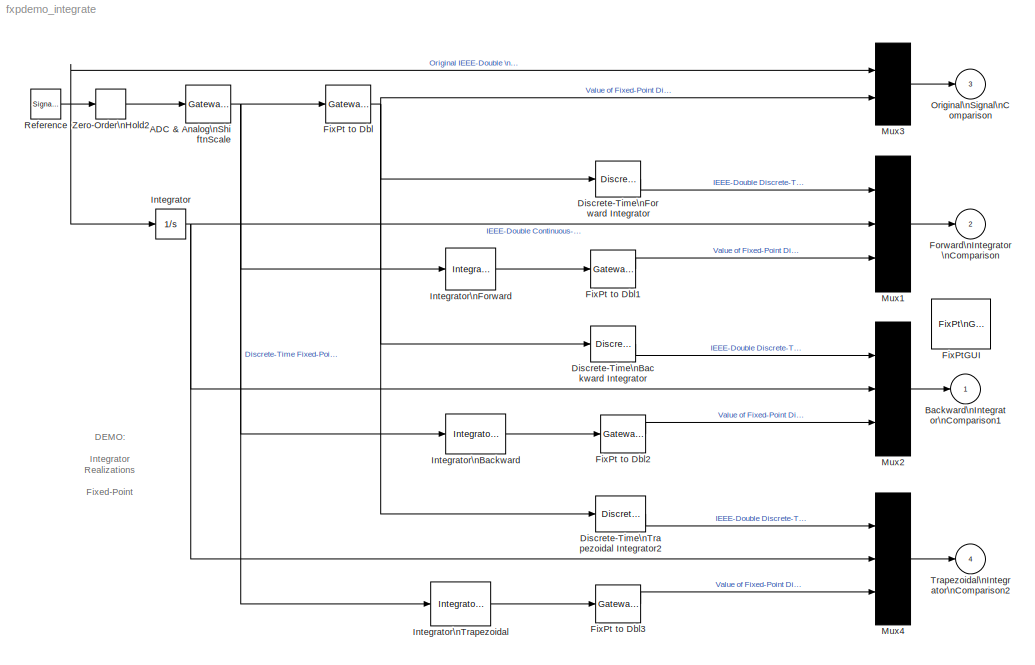
MODEL fxpdemo_integrate
KIND model
CONFIG AbsTol = 1e-6
CONFIG FixedStep = SampleTime/5
CONFIG InitFcn = ; 
CONFIG MaxStep = auto
CONFIG MinStep = auto
CONFIG PreLoadFcn = preload_integrate
CONFIG RelTol = 1e-3
CONFIG Solver = ode5
CONFIG SolverMode = SingleTasking
CONFIG StartFcn = ; 
CONFIG StartTime = 0.0
CONFIG StopFcn = ; 
CONFIG StopTime = 4
BLOCK [Reference] ADC & Analog\nShiftnScale  REF=fixpt_lib_4/Data Type/Gateway In  (lib defined in mdl_ef9dacb0d1df)
  DoSatur = on
  InRealWorld = Real World Value
  LockScale = on
  OutDataType = sfix(16)
  OutScaling = 2^-9
  OutputDataTypeScalingMode = Specify via dialog
  Ports = [1, 1]
  RndMeth = Nearest
  SourceBlock = fixpt_lib_4/Data Type/Gateway In
  SourceType = Fixed-Point Gateway In
BLOCK [Outport] Backward\nIntegrator\nComparison1
BLOCK [DiscreteIntegrator] Discrete-Time\nBackward Integrator
  ExternalReset = none
  InitialConditionSource = internal
  IntegratorMethod = Backward Euler
  Ports = [1, 1]
  SampleTime = SampleTime
BLOCK [DiscreteIntegrator] Discrete-Time\nForward Integrator
  ExternalReset = none
  InitialConditionSource = internal
  IntegratorMethod = Forward Euler
  Ports = [1, 1]
  SampleTime = SampleTime
BLOCK [DiscreteIntegrator] Discrete-Time\nTrapezoidal Integrator2
  ExternalReset = none
  InitialConditionSource = internal
  IntegratorMethod = Trapezoidal
  Ports = [1, 1]
  SampleTime = SampleTime
BLOCK [Reference] FixPt to Dbl  REF=fixpt_lib_4/Data Type/Gateway Out  (lib defined in mdl_ef9dacb0d1df)
  DoSatur = off
  OutBuiltInType = double
  OutRealWorld = Real World Value
  Ports = [1, 1]
  RndMeth = Floor
  SourceBlock = fixpt_lib_4/Data Type/Gateway Out
  SourceType = Fixed-Point Gateway Out
BLOCK [Reference] FixPt to Dbl1  REF=fixpt_lib_4/Data Type/Gateway Out  (lib defined in mdl_ef9dacb0d1df)
  DoSatur = off
  OutBuiltInType = double
  OutRealWorld = Real World Value
  Ports = [1, 1]
  RndMeth = Floor
  SourceBlock = fixpt_lib_4/Data Type/Gateway Out
  SourceType = Fixed-Point Gateway Out
BLOCK [Reference] FixPt to Dbl2  REF=fixpt_lib_4/Data Type/Gateway Out  (lib defined in mdl_ef9dacb0d1df)
  DoSatur = off
  OutBuiltInType = double
  OutRealWorld = Real World Value
  Ports = [1, 1]
  RndMeth = Floor
  SourceBlock = fixpt_lib_4/Data Type/Gateway Out
  SourceType = Fixed-Point Gateway Out
BLOCK [Reference] FixPt to Dbl3  REF=fixpt_lib_4/Data Type/Gateway Out  (lib defined in mdl_ef9dacb0d1df)
  DoSatur = off
  OutBuiltInType = double
  OutRealWorld = Real World Value
  Ports = [1, 1]
  RndMeth = Floor
  SourceBlock = fixpt_lib_4/Data Type/Gateway Out
  SourceType = Fixed-Point Gateway Out
BLOCK [Reference] FixPtGUI  REF=fixpt_lib_3p1/FixPt\nGUI
  Ports = []
  SourceBlock = fixpt_lib_3p1/FixPt\nGUI
  SourceType = Fixed-Point GUI
BLOCK [Outport] Forward\nIntegrator\nComparison
  Port = 2
BLOCK [Integrator] Integrator
  Ports = [1, 1]
BLOCK [Reference] Integrator\nBackward  REF=fixpt_lib_4/Calculus/Integrator\nBackward  (lib defined in mdl_ef9dacb0d1df)
  DoSatur = off
  ICPrevOutput = 0.0
  LockScale = off
  OutDataType = sfix(16)
  OutScaling = 2^-10
  OutputDataTypeScalingMode = Inherit via internal rule
  Ports = [1, 1]
  RndMeth = Floor
  SourceBlock = fixpt_lib_4/Calculus/Integrator\nBackward
  SourceType = Fixed-Point Integrator Backward
  gainval = 1.0
BLOCK [Reference] Integrator\nForward  REF=fixpt_lib_4/Calculus/Integrator\nForward  (lib defined in mdl_ef9dacb0d1df)
  DoSatur = off
  ICPrevOutput = 0.0
  LockScale = off
  OutDataType = sfix(16)
  OutScaling = 2^-10
  OutputDataTypeScalingMode = Inherit via internal rule
  Ports = [1, 1]
  RndMeth = Floor
  SourceBlock = fixpt_lib_4/Calculus/Integrator\nForward
  SourceType = Fixed-Point Integrator Forward
  gainval = 1.0
BLOCK [Reference] Integrator\nTrapezoidal  REF=fixpt_lib_4/Calculus/Integrator\nTrapezoidal  (lib defined in mdl_ef9dacb0d1df)
  DoSatur = off
  ICPrevOutput = 0.0
  ICPrevScaledInput = 0.0
  LockScale = off
  OutDataType = sfix(16)
  OutScaling = 2^-10
  OutputDataTypeScalingMode = Inherit via internal rule
  Ports = [1, 1]
  RndMeth = Floor
  SourceBlock = fixpt_lib_4/Calculus/Integrator\nTrapezoidal
  SourceType = Fixed-Point Integrator Trapezoidal
  gainval = 1.0
BLOCK [Mux] Mux1
  Inputs = 3
  Ports = [3, 1]
BLOCK [Mux] Mux2
  Inputs = 3
  Ports = [3, 1]
BLOCK [Mux] Mux3
  Inputs = 2
  Ports = [2, 1]
BLOCK [Mux] Mux4
  Inputs = 3
  Ports = [3, 1]
BLOCK [Outport] Original\nSignal\nComparison
  Port = 3
BLOCK [SignalGenerator] Reference
  Amplitude = -1
  Frequency = 0.1*2.5
BLOCK [Outport] Trapezoidal\nIntegrator\nComparison2
  Port = 4
BLOCK [ZeroOrderHold] Zero-Order\nHold2
  SampleTime = SampleTime
ANNOTATION (root): DEMO:\n\nIntegrator\nRealizations\n\nFixed-Point \nverses\nFloating-Point
NET ADC & Analog\nShiftnScale:1 -> FixPt to Dbl:1, Integrator\nBackward:1, Integrator\nForward:1, Integrator\nTrapezoidal:1
LINE Discrete-Time\nBackward Integrator:1 -> Mux2:1
LINE Discrete-Time\nForward Integrator:1 -> Mux1:1
LINE Discrete-Time\nTrapezoidal Integrator2:1 -> Mux4:1
LINE FixPt to Dbl1:1 -> Mux1:3
LINE FixPt to Dbl2:1 -> Mux2:3
LINE FixPt to Dbl3:1 -> Mux4:3
NET FixPt to Dbl:1 -> Discrete-Time\nBackward Integrator:1, Discrete-Time\nForward Integrator:1, Discrete-Time\nTrapezoidal Integrator2:1, Mux3:2
NET Integrator:1 -> Mux1:2, Mux2:2, Mux4:2
LINE Integrator\nBackward:1 -> FixPt to Dbl2:1
LINE Integrator\nForward:1 -> FixPt to Dbl1:1
LINE Integrator\nTrapezoidal:1 -> FixPt to Dbl3:1
LINE Mux1:1 -> Forward\nIntegrator\nComparison:1
LINE Mux2:1 -> Backward\nIntegrator\nComparison1:1
LINE Mux3:1 -> Original\nSignal\nComparison:1
LINE Mux4:1 -> Trapezoidal\nIntegrator\nComparison2:1
NET Reference:1 -> Integrator:1, Mux3:1, Zero-Order\nHold2:1
LINE Zero-Order\nHold2:1 -> ADC & Analog\nShiftnScale:1
note: NET lines group one-source signal fan-out (src -> all destinations, sorted); 1:1 wires keep LINE
